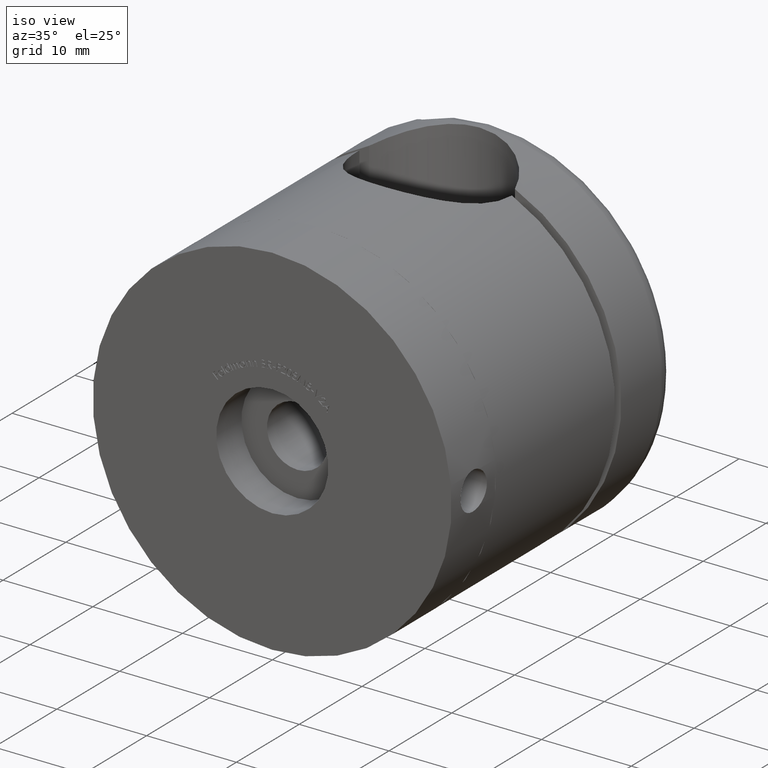
[diagram: clean part render]
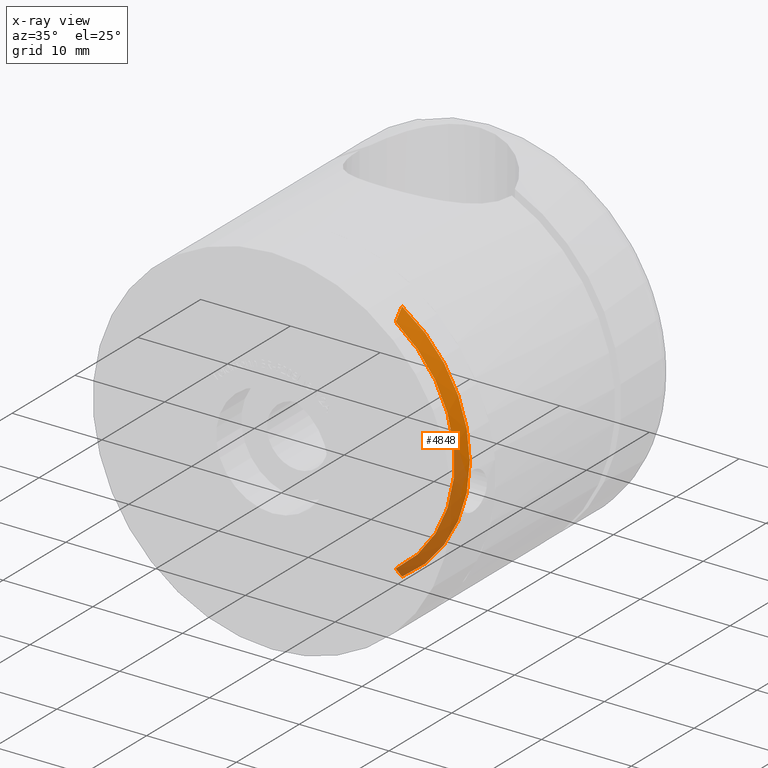
[diagram: x-ray — body ghosted, one internal face saturated and labeled with its STEP entity id]
A machine part, iso view, then the same camera in x-ray: the body is ghosted and one INTERNAL B-rep face — a face not visible from any outside direction — is saturated and labeled: STEP entity #4848.
In plain terms, the highlighted conical surface has half-angle 45 deg.
Its self-contained STEP definition (entity closure, byte-faithful):
#642 = CARTESIAN_POINT ( 'NONE',  ( 8.499999999999998200, 29.50000000000000000, -12.41984299417669200 ) ) ;
#883 = CARTESIAN_POINT ( 'NONE',  ( 8.499999999999998200, 28.49999999999997900, -13.61442249968762000 ) ) ;
#964 = B_SPLINE_CURVE_WITH_KNOTS ( 'NONE', 3,
 ( #14785, #10765, #9221, #15900 ),
 .UNSPECIFIED., .F., .F.,
 ( 4, 4 ),
 ( 0.02400942396631759700, 0.02556712859675523000 ),
 .UNSPECIFIED. ) ;
#2028 = DIRECTION ( 'NONE',  ( 0.0000000000000000000, -1.000000000000000000, 0.0000000000000000000 ) ) ;
#2053 = CIRCLE ( 'NONE', #9794, 16.05000000000000100 ) ;
#2073 = DIRECTION ( 'NONE',  ( 0.0000000000000000000, 0.0000000000000000000, 1.000000000000000000 ) ) ;
#2264 = VERTEX_POINT ( 'NONE', #15706 ) ;
#2281 = VERTEX_POINT ( 'NONE', #17268 ) ;
#2582 = AXIS2_PLACEMENT_3D ( 'NONE', #5867, #3370, #2073 ) ;
#2853 = CIRCLE ( 'NONE', #2582, 15.04999999999999400 ) ;
#3332 = ORIENTED_EDGE ( 'NONE', *, *, #11562, .F. ) ;
#3370 = DIRECTION ( 'NONE',  ( 0.0000000000000000000, 1.000000000000000000, 0.0000000000000000000 ) ) ;
#4790 = CONICAL_SURFACE ( 'NONE', #5714, 15.04999999999999400, 0.7853981633974482800 ) ;
#4848 = ADVANCED_FACE ( 'NONE', ( #6871 ), #4790, .T. ) ;
#5344 = EDGE_CURVE ( 'NONE', #7455, #2264, #13592, .T. ) ;
#5653 = ORIENTED_EDGE ( 'NONE', *, *, #12558, .F. ) ;
#5714 = AXIS2_PLACEMENT_3D ( 'NONE', #6177, #2028, #8859 ) ;
#5867 = CARTESIAN_POINT ( 'NONE',  ( 0.0000000000000000000, 29.50000000000000000, 0.0000000000000000000 ) ) ;
#6177 = CARTESIAN_POINT ( 'NONE',  ( 0.0000000000000000000, 29.50000000000000000, 0.0000000000000000000 ) ) ;
#6507 = CARTESIAN_POINT ( 'NONE',  ( 8.499999999999998200, 29.50000000000000000, 12.41984299417669000 ) ) ;
#6871 = FACE_OUTER_BOUND ( 'NONE', #13922, .T. ) ;
#7455 = VERTEX_POINT ( 'NONE', #16913 ) ;
#7658 = VERTEX_POINT ( 'NONE', #6507 ) ;
#8859 = DIRECTION ( 'NONE',  ( 0.0000000000000000000, 0.0000000000000000000, -1.000000000000000000 ) ) ;
#9221 = CARTESIAN_POINT ( 'NONE',  ( 8.499999999999998200, 29.16949837352622400, 12.82033513250424900 ) ) ;
#9794 = AXIS2_PLACEMENT_3D ( 'NONE', #13986, #10068, #14106 ) ;
#10068 = DIRECTION ( 'NONE',  ( 0.0000000000000000000, -1.000000000000000000, 0.0000000000000000000 ) ) ;
#10086 = CARTESIAN_POINT ( 'NONE',  ( 8.499999999999998200, 28.83607523664976900, -13.21822445688761700 ) ) ;
#10288 = ORIENTED_EDGE ( 'NONE', *, *, #11445, .F. ) ;
#10765 = CARTESIAN_POINT ( 'NONE',  ( 8.499999999999998200, 28.83595923316134000, 13.21836121303637900 ) ) ;
#11445 = EDGE_CURVE ( 'NONE', #2264, #2281, #2053, .T. ) ;
#11562 = EDGE_CURVE ( 'NONE', #2281, #7658, #964, .T. ) ;
#12524 = ORIENTED_EDGE ( 'NONE', *, *, #5344, .F. ) ;
#12558 = EDGE_CURVE ( 'NONE', #7658, #7455, #2853, .T. ) ;
#12955 = CARTESIAN_POINT ( 'NONE',  ( 8.499999999999998200, 29.16962134847506100, -12.82018611508261900 ) ) ;
#13592 = B_SPLINE_CURVE_WITH_KNOTS ( 'NONE', 3,
 ( #642, #12955, #10086, #883 ),
 .UNSPECIFIED., .F., .F.,
 ( 4, 4 ),
 ( 0.05413323917447383800, 0.05569312268412510100 ),
 .UNSPECIFIED. ) ;
#13922 = EDGE_LOOP ( 'NONE', ( #3332, #10288, #12524, #5653 ) ) ;
#13986 = CARTESIAN_POINT ( 'NONE',  ( 0.0000000000000000000, 28.49999999999998900, 0.0000000000000000000 ) ) ;
#14106 = DIRECTION ( 'NONE',  ( 0.0000000000000000000, 0.0000000000000000000, 1.000000000000000000 ) ) ;
#14785 = CARTESIAN_POINT ( 'NONE',  ( 8.499999999999998200, 28.49999999999998600, 13.61442249968760800 ) ) ;
#15706 = CARTESIAN_POINT ( 'NONE',  ( 8.499999999999998200, 28.49999999999997900, -13.61442249968762000 ) ) ;
#15900 = CARTESIAN_POINT ( 'NONE',  ( 8.499999999999998200, 29.50000000000000000, 12.41984299417669000 ) ) ;
#16913 = CARTESIAN_POINT ( 'NONE',  ( 8.499999999999998200, 29.50000000000000000, -12.41984299417669200 ) ) ;
#17268 = CARTESIAN_POINT ( 'NONE',  ( 8.499999999999998200, 28.49999999999998600, 13.61442249968760800 ) ) ;